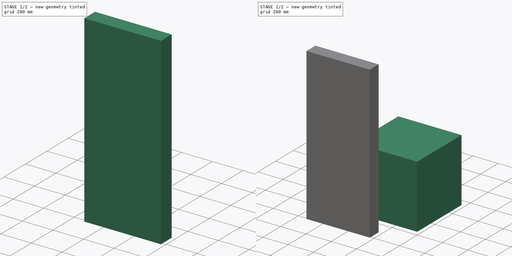
[diagram: build sequence overview — one tinted view per stage of 2, left to right]
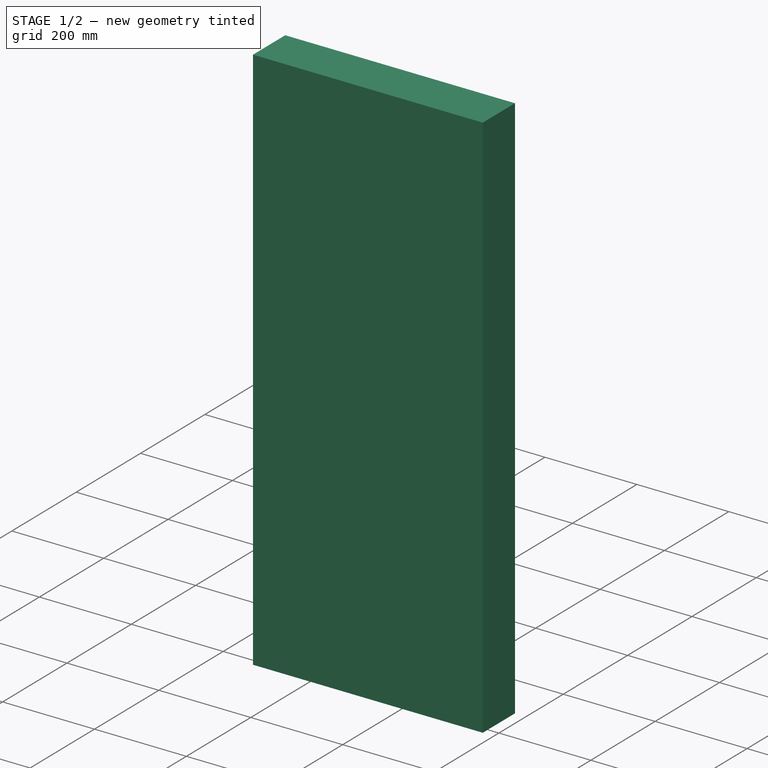
[diagram: stage 1 of 2 — iso view after this stage's code; geometry added in this stage tinted green]
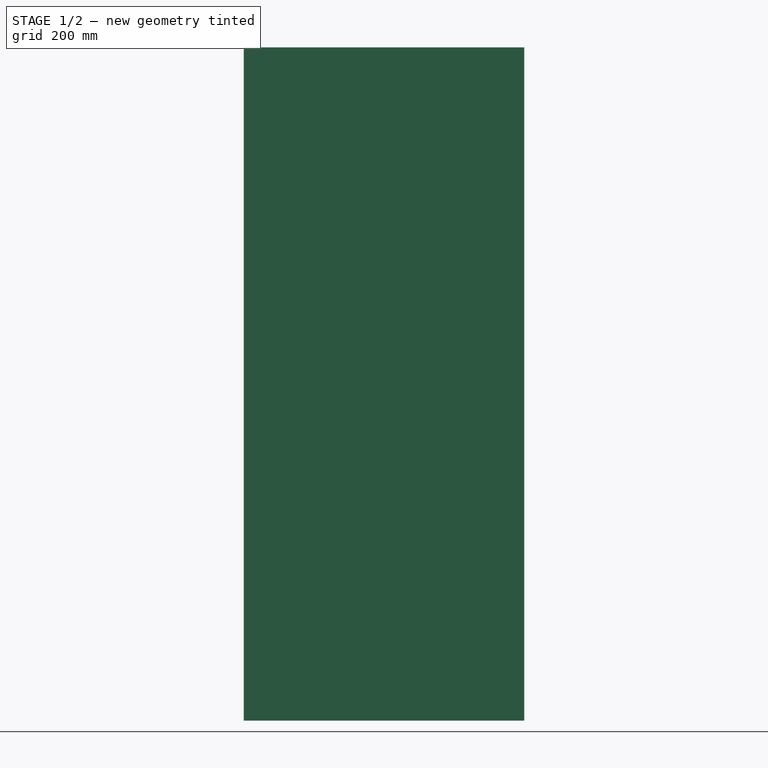
[diagram: stage 1 of 2 — front view after this stage's code; geometry added in this stage tinted green]
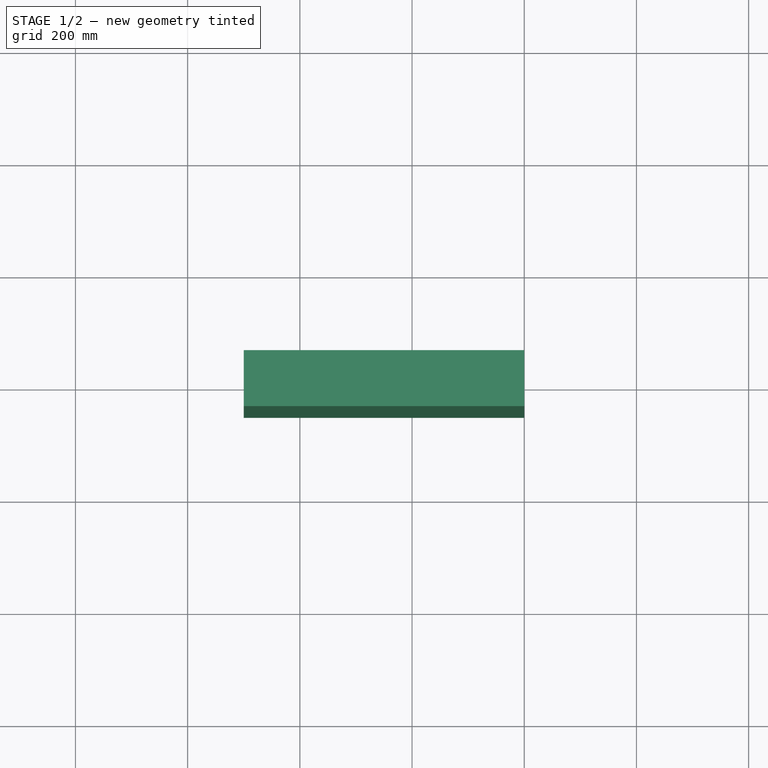
[diagram: stage 1 of 2 — top view after this stage's code; geometry added in this stage tinted green]
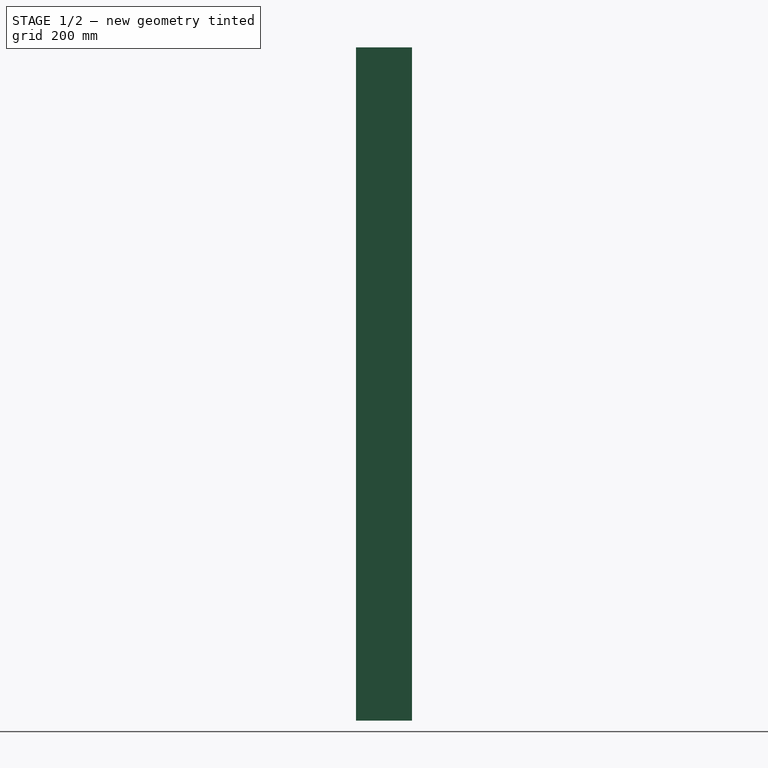
[diagram: stage 1 of 2 — right view after this stage's code; geometry added in this stage tinted green]
FCSTD DOCUMENT  (FreeCAD 0.19R)
Label: test_MultiMaterial
License: Creative Commons Attribution-ShareAlike
LicenseURL: http://creativecommons.org/licenses/by-sa/4.0/
objects: App::MaterialObjectPython×2, Part::Box×1, Sketcher::SketchObject×1, Part::FeaturePython×1, App::FeaturePython×1, App::DocumentObjectGroupPython×1
note: 3 computed .brp shape members not serialized (recipe doc carries the construction recipe); baked Part::Feature solids carry a one-line shape summary decoded from their .brp

FEATURE [Sketcher::SketchObject] Sketch
  FullyConstrained = true
  sketch-geometry (1):
    g0: LineSegment StartX=0 StartY=0 StartZ=0 EndX=-500 EndY=0 EndZ=0
  constraints (3):
    c: Horizontal(g0)
    c: DistanceX(g0,g0) = 500
    c: Coincident(g0,g-1)
FEATURE [App::MaterialObjectPython] Material  # material (typed FeaturePython)
  Material = Name=Material; SectionColor=(0.0, 0.0, 0.0); Transparency=0
  Transparency = 0
FEATURE [App::MaterialObjectPython] Material001  label="MyGlass"  # material (typed FeaturePython)
  Description = test..
  Material = Color=(0.0, 1.0, 1.0, 1.0),Description=test..,DiffuseColor=(0.0, 1.0, 1.0, 1.0),Name=MyGlass,SectionColor=(0.0, 0.0, 0.0, 1.0),Transparency=80,+1 more (map truncated)
  Transparency = 80
FEATURE [Part::FeaturePython] Wall  # Arch/BIM 166 (typed FeaturePython)
  Align = 2
  Area = 600000
  Base = -> Sketch
  BlockHeight = 0
  BlockLength = 0
  CountBroken = 0
  CountEntire = 0
  Face = 0
  Height = 1200
  HorizontalArea = 50000
  IfcData = attributes={"GlobalId": {"name": "GlobalId", "type": "IfcGloballyUniqueId", "is_enum": false, "enum_values": []}, "Description": {"... (+533 chars omitted),+1 more (map truncated)
  IfcType = 166
  Joint = 0
  Length = 500
  MakeBlocks = false
  Material = -> Material001
  MoveBase = false
  MoveWithHost = false
  Normal = (0,0,0)
  OffsetFirst = 0
  OffsetSecond = 0
  PerimeterLength = 1200
  PredefinedType = 0
  VerticalArea = 1.44e+06
  Width = 100
FEATURE [App::FeaturePython] MultiMaterial  # WARN: FeaturePython — macro-defined, semantics opaque (R4)
  Materials = -> [Material,Material001]
  Names = New layer | New layer
  Thicknesses = [10,5]
FEATURE [App::DocumentObjectGroupPython] MaterialContainer  label="Materials"  # scripted group (container) (typed FeaturePython)
  Group = -> [MultiMaterial,Material,Material001]
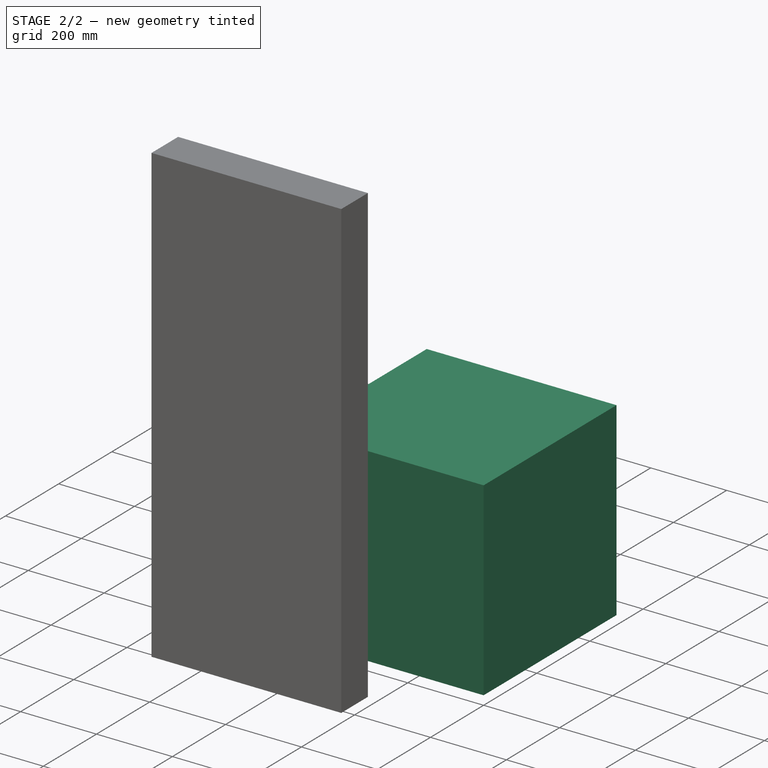
[diagram: stage 2 of 2 — iso view after this stage's code; geometry added in this stage tinted green]
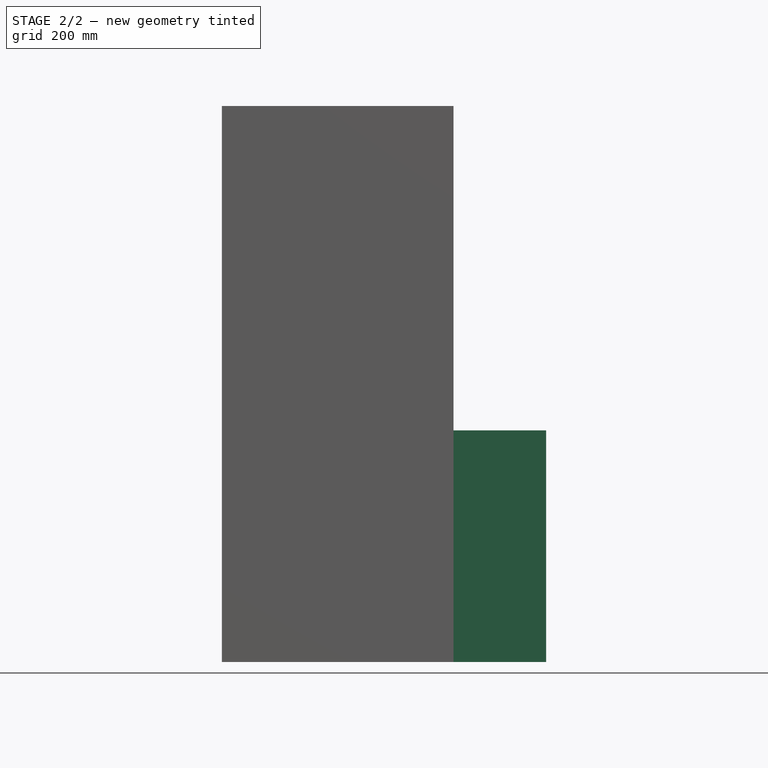
[diagram: stage 2 of 2 — front view after this stage's code; geometry added in this stage tinted green]
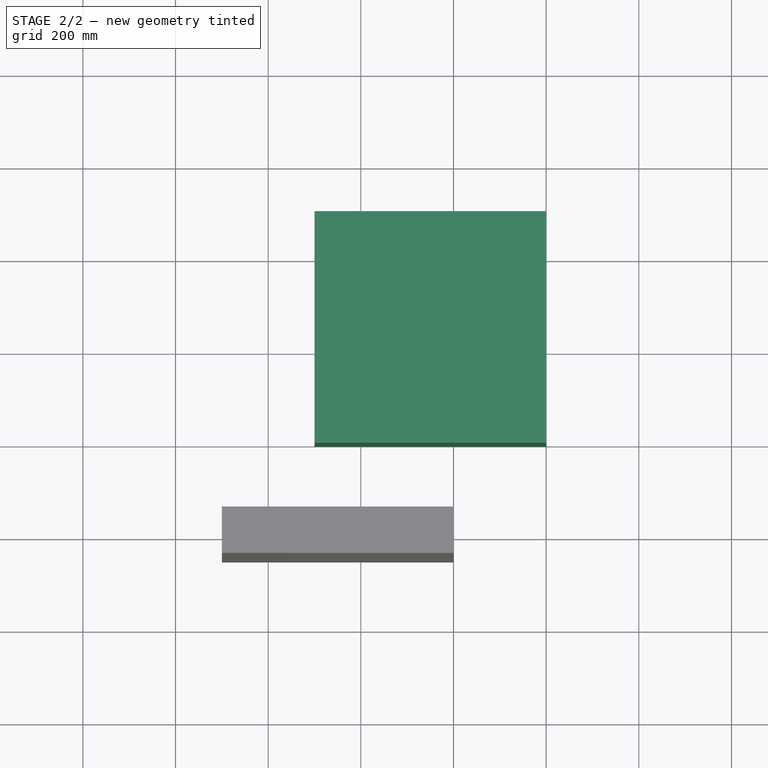
[diagram: stage 2 of 2 — top view after this stage's code; geometry added in this stage tinted green]
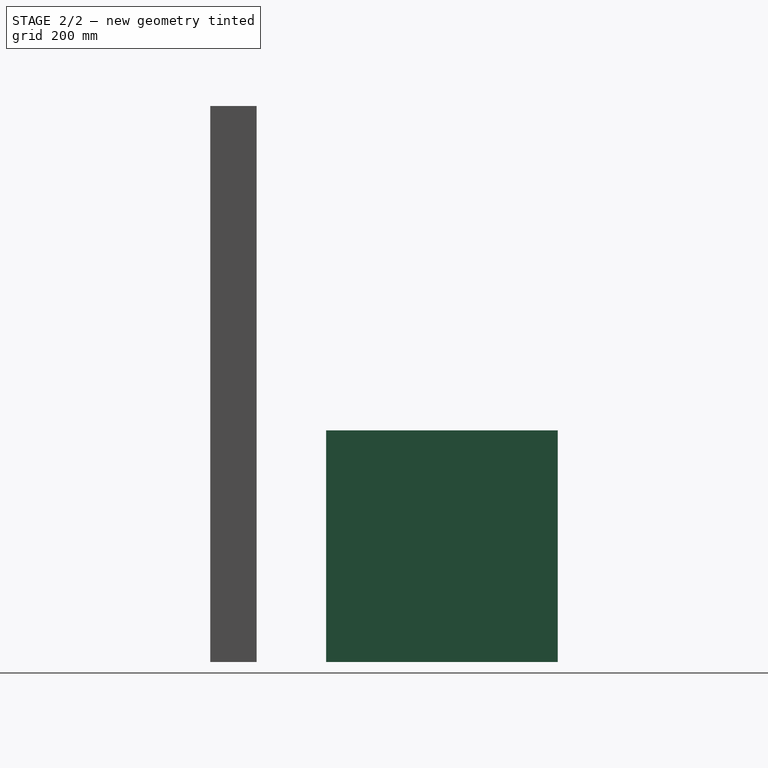
[diagram: stage 2 of 2 — right view after this stage's code; geometry added in this stage tinted green]
FEATURE [Part::Box] Box  label="Cube"
  AttacherType = Attacher::AttachEngine3D
  Height = 500
  Length = 500
  Placement = pos=(-300,200,0) rot=(0,0,1;0rad)
  Width = 500
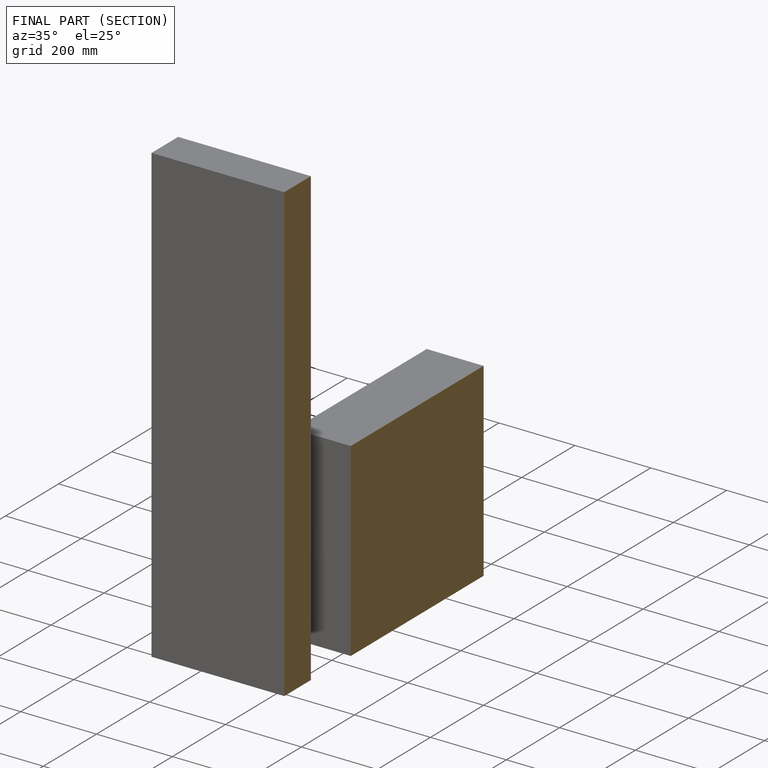
[diagram: finished part — half-section view (interior)]
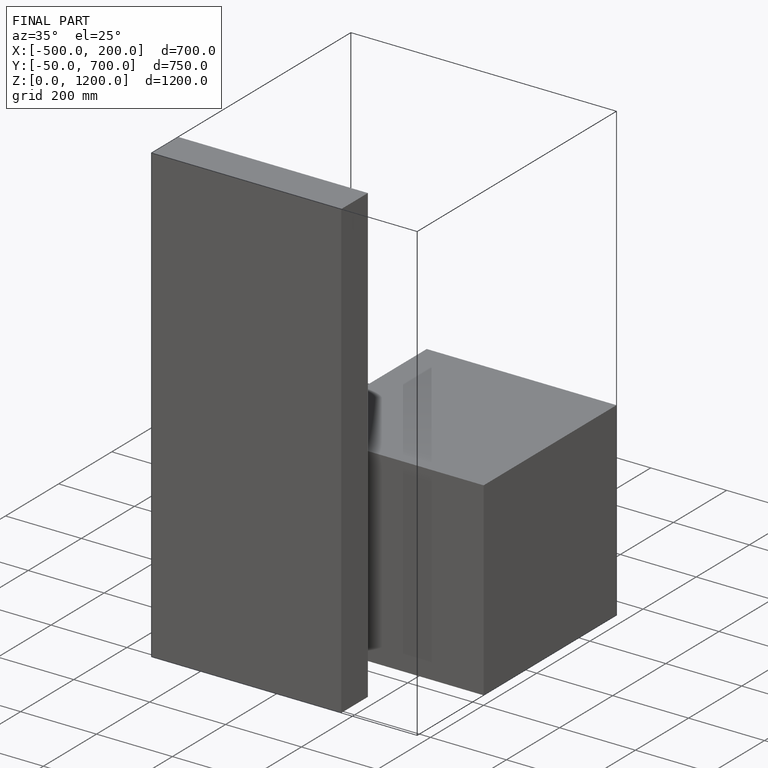
[diagram: finished part — iso view with bounding-box wireframe]
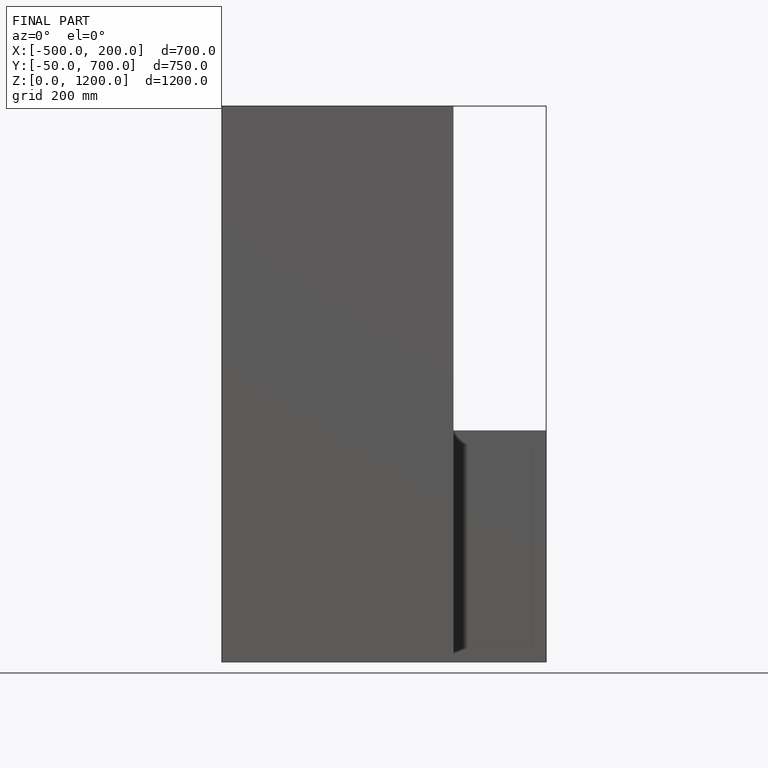
[diagram: finished part — front view with bounding-box wireframe]
